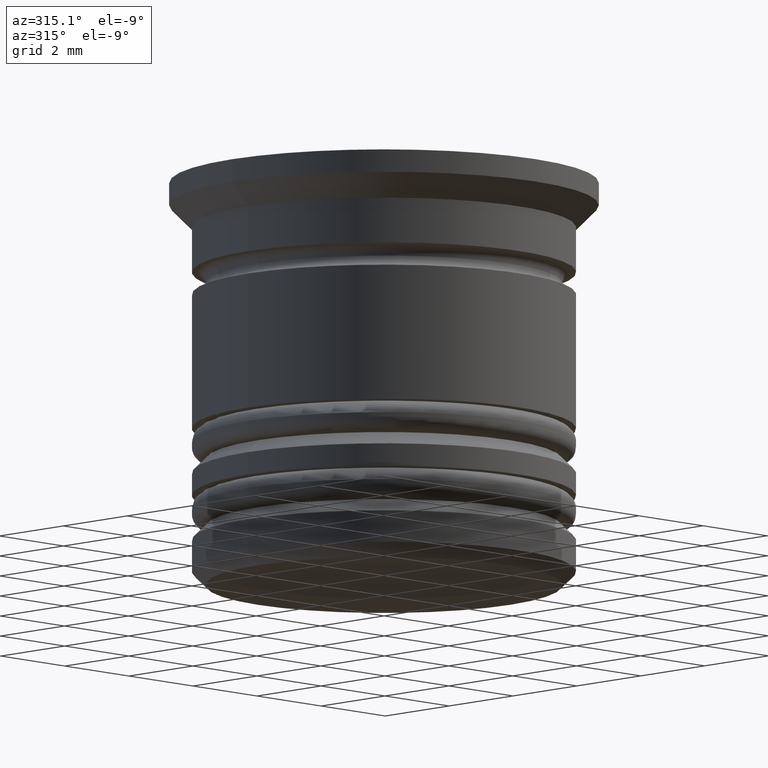
[diagram: clean part render]
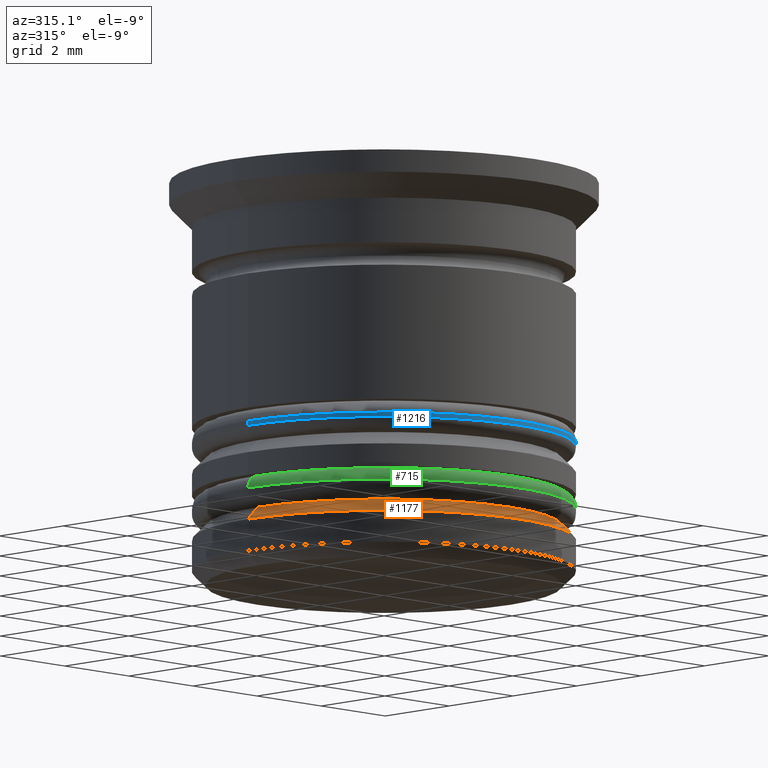
[diagram: same view with three faces highlighted in distinct colors, each labeled with its STEP entity id]
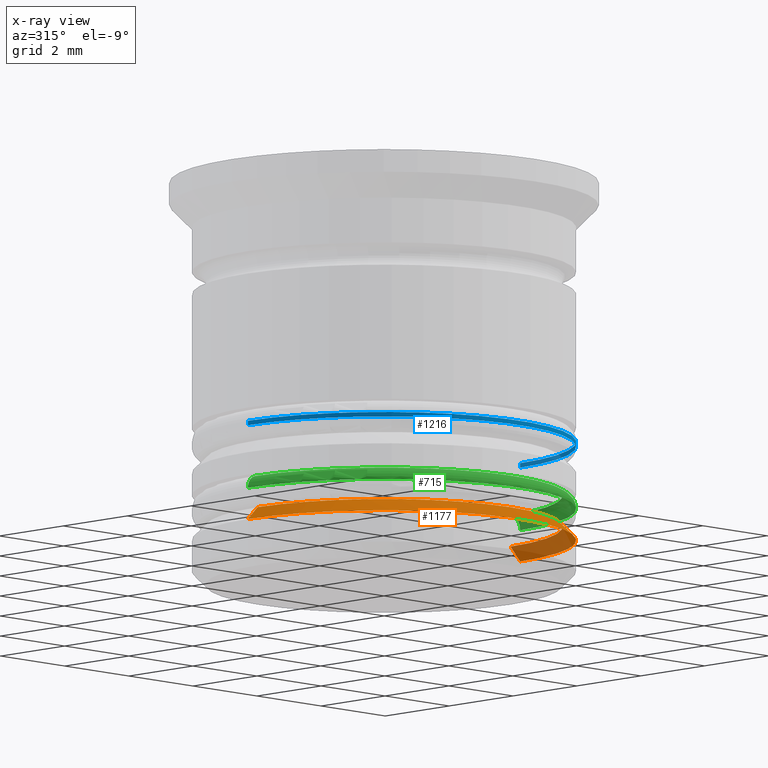
[diagram: x-ray of the same camera — body ghosted, the three highlighted faces saturated]
A machine part, auxiliary view with three faces highlighted in distinct colors.
The next image is the same camera in x-ray (body ghosted, the three faces saturated) — at least one of them is partly hidden behind the body in this view.
Their STEP definitions:

[orange] entity #1177 — the highlighted conical surface has half-angle 45 deg.
#53 = DIRECTION ( 'NONE',  ( -0.000000000000000000, -0.000000000000000000, 1.000000000000000000 ) ) ;
#56 = CARTESIAN_POINT ( 'NONE',  ( 3.950000000000000178, 0.000000000000000000, -7.700000000000006395 ) ) ;
#154 = CARTESIAN_POINT ( 'NONE',  ( 0.000000000000000000, 0.000000000000000000, -8.000000000000003553 ) ) ;
#201 = DIRECTION ( 'NONE',  ( 0.7071067811865507924, 8.659560562354974766E-17, -0.7071067811865441310 ) ) ;
#207 = DIRECTION ( 'NONE',  ( -0.7071067811865507924, 0.000000000000000000, -0.7071067811865441310 ) ) ;
#208 = ORIENTED_EDGE ( 'NONE', *, *, #1641, .T. ) ;
#335 = AXIS2_PLACEMENT_3D ( 'NONE', #154, #1234, #1852 ) ;
#364 = VECTOR ( 'NONE', #207, 1000.000000000000000 ) ;
#370 = CARTESIAN_POINT ( 'NONE',  ( 0.000000000000000000, 0.000000000000000000, -7.500000000000000000 ) ) ;
#450 = VERTEX_POINT ( 'NONE', #1567 ) ;
#521 = LINE ( 'NONE', #1791, #364 ) ;
#641 = ORIENTED_EDGE ( 'NONE', *, *, #1571, .F. ) ;
#647 = CARTESIAN_POINT ( 'NONE',  ( 4.250000000000000000, 0.000000000000000000, -8.000000000000003553 ) ) ;
#686 = CONICAL_SURFACE ( 'NONE', #1492, 3.749999999999991562, 0.7853981633974530530 ) ;
#751 = VERTEX_POINT ( 'NONE', #56 ) ;
#846 = FACE_OUTER_BOUND ( 'NONE', #1727, .T. ) ;
#860 = LINE ( 'NONE', #1039, #1374 ) ;
#1039 = CARTESIAN_POINT ( 'NONE',  ( 3.749999999999991562, 4.592425496802564111E-16, -7.500000000000000000 ) ) ;
#1128 = DIRECTION ( 'NONE',  ( 0.000000000000000000, 0.000000000000000000, -1.000000000000000000 ) ) ;
#1177 = ADVANCED_FACE ( 'NONE', ( #846 ), #686, .T. ) ;
#1234 = DIRECTION ( 'NONE',  ( 0.000000000000000000, 0.000000000000000000, -1.000000000000000000 ) ) ;
#1269 = DIRECTION ( 'NONE',  ( -1.000000000000000000, 0.000000000000000000, 0.000000000000000000 ) ) ;
#1287 = CIRCLE ( 'NONE', #335, 4.250000000000000000 ) ;
#1319 = CIRCLE ( 'NONE', #1572, 3.950000000000000178 ) ;
#1374 = VECTOR ( 'NONE', #201, 1000.000000000000000 ) ;
#1457 = CARTESIAN_POINT ( 'NONE',  ( 0.000000000000000000, 0.000000000000000000, -7.700000000000006395 ) ) ;
#1492 = AXIS2_PLACEMENT_3D ( 'NONE', #370, #1128, #1269 ) ;
#1531 = VERTEX_POINT ( 'NONE', #647 ) ;
#1567 = CARTESIAN_POINT ( 'NONE',  ( -4.250000000000000000, 5.204748896376250699E-16, -8.000000000000003553 ) ) ;
#1571 = EDGE_CURVE ( 'NONE', #1592, #751, #1319, .T. ) ;
#1572 = AXIS2_PLACEMENT_3D ( 'NONE', #1457, #53, #1666 ) ;
#1592 = VERTEX_POINT ( 'NONE', #1634 ) ;
#1614 = EDGE_CURVE ( 'NONE', #751, #1531, #860, .T. ) ;
#1634 = CARTESIAN_POINT ( 'NONE',  ( -3.950000000000000178, 4.837354856632045057E-16, -7.700000000000006395 ) ) ;
#1641 = EDGE_CURVE ( 'NONE', #1592, #450, #521, .T. ) ;
#1666 = DIRECTION ( 'NONE',  ( -1.000000000000000000, 0.000000000000000000, 0.000000000000000000 ) ) ;
#1695 = EDGE_CURVE ( 'NONE', #1531, #450, #1287, .T. ) ;
#1697 = ORIENTED_EDGE ( 'NONE', *, *, #1614, .F. ) ;
#1727 = EDGE_LOOP ( 'NONE', ( #1697, #641, #208, #1738 ) ) ;
#1738 = ORIENTED_EDGE ( 'NONE', *, *, #1695, .F. ) ;
#1791 = CARTESIAN_POINT ( 'NONE',  ( -3.749999999999991562, 0.000000000000000000, -7.500000000000000000 ) ) ;
#1852 = DIRECTION ( 'NONE',  ( -1.000000000000000000, 0.000000000000000000, 0.000000000000000000 ) ) ;

[blue] entity #1216 — the highlighted cylindrical surface (partial cylindrical patch) has radius 4.25 mm, axis along (-0, -0, 1).
#9 = CARTESIAN_POINT ( 'NONE',  ( 4.250000000000000000, 0.000000000000000000, -18.22081528017131191 ) ) ;
#47 = CARTESIAN_POINT ( 'NONE',  ( 4.250000000000000000, 0.000000000000000000, -5.799999999999999822 ) ) ;
#52 = ORIENTED_EDGE ( 'NONE', *, *, #804, .T. ) ;
#61 = CYLINDRICAL_SURFACE ( 'NONE', #1934, 4.250000000000000000 ) ;
#65 = CARTESIAN_POINT ( 'NONE',  ( -4.250000000000000000, 5.204748896376250699E-16, -5.799999999999999822 ) ) ;
#217 = CARTESIAN_POINT ( 'NONE',  ( 0.000000000000000000, 0.000000000000000000, -18.22081528017131191 ) ) ;
#310 = AXIS2_PLACEMENT_3D ( 'NONE', #1390, #613, #1252 ) ;
#530 = EDGE_CURVE ( 'NONE', #1923, #1420, #1642, .T. ) ;
#594 = CIRCLE ( 'NONE', #1750, 4.250000000000000000 ) ;
#603 = CARTESIAN_POINT ( 'NONE',  ( -4.250000000000000000, 5.204748896376250699E-16, -18.22081528017131191 ) ) ;
#613 = DIRECTION ( 'NONE',  ( 0.000000000000000000, 0.000000000000000000, 1.000000000000000000 ) ) ;
#616 = LINE ( 'NONE', #9, #1529 ) ;
#633 = ORIENTED_EDGE ( 'NONE', *, *, #1712, .F. ) ;
#704 = VERTEX_POINT ( 'NONE', #47 ) ;
#797 = VECTOR ( 'NONE', #1393, 1000.000000000000000 ) ;
#804 = EDGE_CURVE ( 'NONE', #704, #1913, #594, .T. ) ;
#885 = CARTESIAN_POINT ( 'NONE',  ( -4.250000000000000000, 5.204748896376250699E-16, -5.900000000000003908 ) ) ;
#896 = DIRECTION ( 'NONE',  ( -1.000000000000000000, 0.000000000000000000, 0.000000000000000000 ) ) ;
#939 = EDGE_LOOP ( 'NONE', ( #633, #947, #1215, #52 ) ) ;
#942 = DIRECTION ( 'NONE',  ( 0.000000000000000000, 0.000000000000000000, -1.000000000000000000 ) ) ;
#947 = ORIENTED_EDGE ( 'NONE', *, *, #530, .T. ) ;
#1038 = DIRECTION ( 'NONE',  ( 1.000000000000000000, 0.000000000000000000, 0.000000000000000000 ) ) ;
#1079 = LINE ( 'NONE', #603, #797 ) ;
#1165 = DIRECTION ( 'NONE',  ( -0.000000000000000000, -0.000000000000000000, 1.000000000000000000 ) ) ;
#1215 = ORIENTED_EDGE ( 'NONE', *, *, #1739, .T. ) ;
#1216 = ADVANCED_FACE ( 'NONE', ( #1318 ), #61, .T. ) ;
#1252 = DIRECTION ( 'NONE',  ( 1.000000000000000000, 0.000000000000000000, 0.000000000000000000 ) ) ;
#1318 = FACE_OUTER_BOUND ( 'NONE', #939, .T. ) ;
#1373 = CARTESIAN_POINT ( 'NONE',  ( 4.250000000000000000, 0.000000000000000000, -5.900000000000003908 ) ) ;
#1390 = CARTESIAN_POINT ( 'NONE',  ( 0.000000000000000000, 0.000000000000000000, -5.900000000000003908 ) ) ;
#1393 = DIRECTION ( 'NONE',  ( -0.000000000000000000, -0.000000000000000000, 1.000000000000000000 ) ) ;
#1420 = VERTEX_POINT ( 'NONE', #1373 ) ;
#1529 = VECTOR ( 'NONE', #1532, 1000.000000000000000 ) ;
#1532 = DIRECTION ( 'NONE',  ( -0.000000000000000000, -0.000000000000000000, 1.000000000000000000 ) ) ;
#1642 = CIRCLE ( 'NONE', #310, 4.250000000000000000 ) ;
#1712 = EDGE_CURVE ( 'NONE', #1923, #1913, #1079, .T. ) ;
#1739 = EDGE_CURVE ( 'NONE', #1420, #704, #616, .T. ) ;
#1750 = AXIS2_PLACEMENT_3D ( 'NONE', #2013, #942, #896 ) ;
#1913 = VERTEX_POINT ( 'NONE', #65 ) ;
#1923 = VERTEX_POINT ( 'NONE', #885 ) ;
#1934 = AXIS2_PLACEMENT_3D ( 'NONE', #217, #1165, #1038 ) ;
#2013 = CARTESIAN_POINT ( 'NONE',  ( 0.000000000000000000, 0.000000000000000000, -5.799999999999999822 ) ) ;

[green] entity #715 — the highlighted toroidal blend (fillet) surface has major radius 3.95 mm and minor (blend) radius 0.3 mm.
#3 = AXIS2_PLACEMENT_3D ( 'NONE', #725, #249, #1477 ) ;
#60 = AXIS2_PLACEMENT_3D ( 'NONE', #1919, #1587, #186 ) ;
#148 = CARTESIAN_POINT ( 'NONE',  ( -3.950000000000000178, 0.000000000000000000, -6.999999999999998224 ) ) ;
#160 = CARTESIAN_POINT ( 'NONE',  ( 3.950000000000000178, 5.021051876504148371E-16, -6.999999999999998224 ) ) ;
#186 = DIRECTION ( 'NONE',  ( -1.000000000000000000, 0.000000000000000000, 0.000000000000000000 ) ) ;
#249 = DIRECTION ( 'NONE',  ( 0.000000000000000000, 0.000000000000000000, -1.000000000000000000 ) ) ;
#316 = DIRECTION ( 'NONE',  ( -0.000000000000000000, -1.000000000000000000, -0.000000000000000000 ) ) ;
#372 = ORIENTED_EDGE ( 'NONE', *, *, #1324, .T. ) ;
#414 = VERTEX_POINT ( 'NONE', #518 ) ;
#430 = CARTESIAN_POINT ( 'NONE',  ( 3.950000000000000178, 4.837354856632045057E-16, -7.299999999999997158 ) ) ;
#503 = CARTESIAN_POINT ( 'NONE',  ( -4.250000000000000000, 5.204748896376250699E-16, -7.299999999999997158 ) ) ;
#513 = VERTEX_POINT ( 'NONE', #503 ) ;
#518 = CARTESIAN_POINT ( 'NONE',  ( 4.250000000000000000, 0.000000000000000000, -7.299999999999997158 ) ) ;
#629 = TOROIDAL_SURFACE ( 'NONE', #3, 3.950000000000000178, 0.2999999999999999889 ) ;
#681 = VERTEX_POINT ( 'NONE', #160 ) ;
#688 = CIRCLE ( 'NONE', #60, 3.950000000000000178 ) ;
#699 = ORIENTED_EDGE ( 'NONE', *, *, #1986, .F. ) ;
#715 = ADVANCED_FACE ( 'NONE', ( #1648 ), #629, .T. ) ;
#725 = CARTESIAN_POINT ( 'NONE',  ( 0.000000000000000000, 0.000000000000000000, -7.299999999999997158 ) ) ;
#756 = AXIS2_PLACEMENT_3D ( 'NONE', #1281, #316, #1862 ) ;
#763 = ORIENTED_EDGE ( 'NONE', *, *, #1877, .F. ) ;
#811 = ORIENTED_EDGE ( 'NONE', *, *, #1360, .F. ) ;
#893 = DIRECTION ( 'NONE',  ( -1.000000000000000000, 0.000000000000000000, 0.000000000000000000 ) ) ;
#1190 = DIRECTION ( 'NONE',  ( 0.000000000000000000, 0.000000000000000000, -1.000000000000000000 ) ) ;
#1191 = CIRCLE ( 'NONE', #1408, 0.2999999999999999334 ) ;
#1254 = CIRCLE ( 'NONE', #1999, 4.250000000000000000 ) ;
#1281 = CARTESIAN_POINT ( 'NONE',  ( -3.950000000000000178, 0.000000000000000000, -7.299999999999997158 ) ) ;
#1324 = EDGE_CURVE ( 'NONE', #1987, #513, #1568, .T. ) ;
#1339 = EDGE_LOOP ( 'NONE', ( #699, #763, #372, #811 ) ) ;
#1360 = EDGE_CURVE ( 'NONE', #414, #513, #1254, .T. ) ;
#1408 = AXIS2_PLACEMENT_3D ( 'NONE', #430, #1831, #1511 ) ;
#1477 = DIRECTION ( 'NONE',  ( -1.000000000000000000, 0.000000000000000000, 0.000000000000000000 ) ) ;
#1511 = DIRECTION ( 'NONE',  ( -1.000000000000000000, -1.224646799147353207E-16, 0.000000000000000000 ) ) ;
#1568 = CIRCLE ( 'NONE', #756, 0.2999999999999999334 ) ;
#1587 = DIRECTION ( 'NONE',  ( -0.000000000000000000, -0.000000000000000000, 1.000000000000000000 ) ) ;
#1648 = FACE_OUTER_BOUND ( 'NONE', #1339, .T. ) ;
#1831 = DIRECTION ( 'NONE',  ( -1.224646799147353207E-16, 1.000000000000000000, 0.000000000000000000 ) ) ;
#1862 = DIRECTION ( 'NONE',  ( 0.000000000000000000, 0.000000000000000000, -1.000000000000000000 ) ) ;
#1877 = EDGE_CURVE ( 'NONE', #1987, #681, #688, .T. ) ;
#1919 = CARTESIAN_POINT ( 'NONE',  ( 0.000000000000000000, 0.000000000000000000, -6.999999999999998224 ) ) ;
#1949 = CARTESIAN_POINT ( 'NONE',  ( 0.000000000000000000, 0.000000000000000000, -7.299999999999997158 ) ) ;
#1986 = EDGE_CURVE ( 'NONE', #681, #414, #1191, .T. ) ;
#1987 = VERTEX_POINT ( 'NONE', #148 ) ;
#1999 = AXIS2_PLACEMENT_3D ( 'NONE', #1949, #1190, #893 ) ;